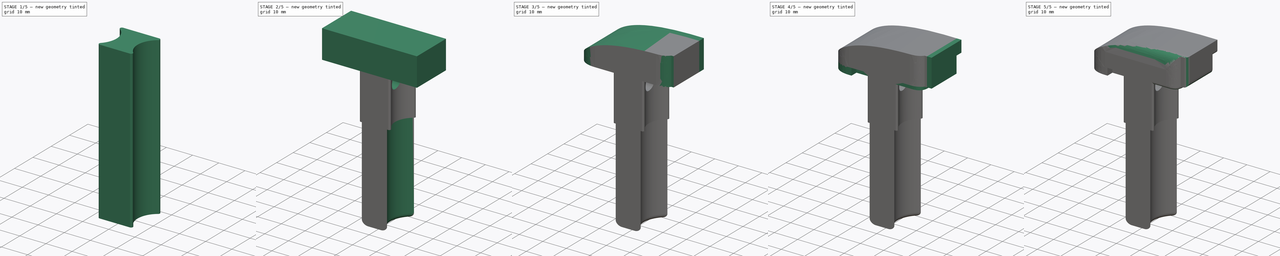
[diagram: build sequence overview — one tinted view per stage of 5, left to right]
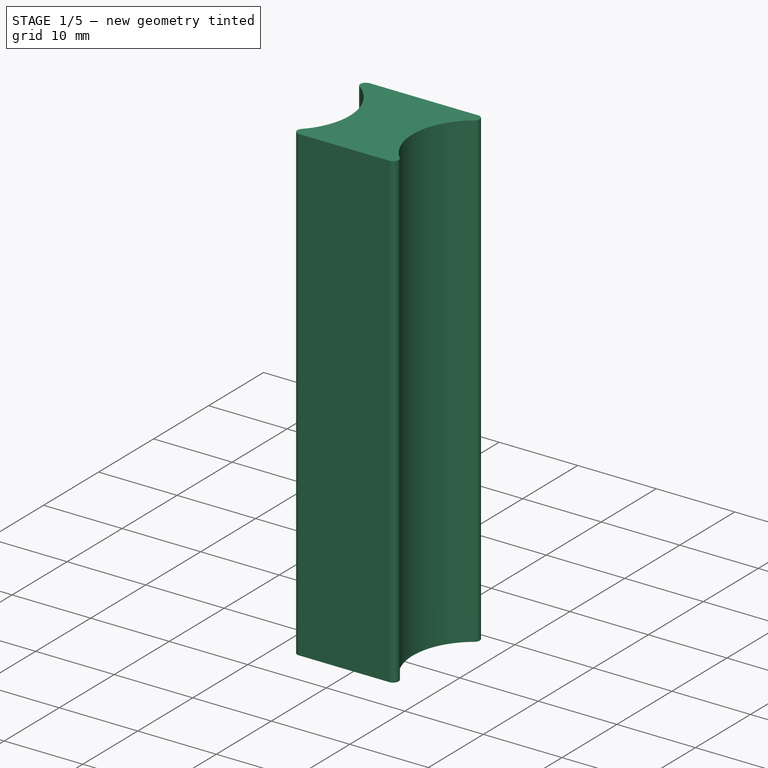
[diagram: stage 1 of 5 — iso view after this stage's code; geometry added in this stage tinted green]
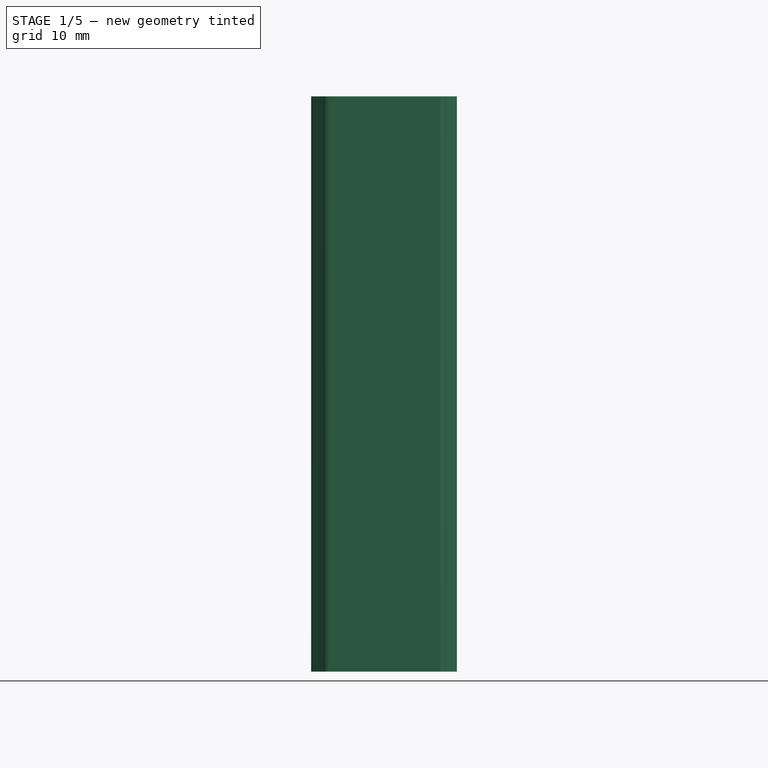
[diagram: stage 1 of 5 — front view after this stage's code; geometry added in this stage tinted green]
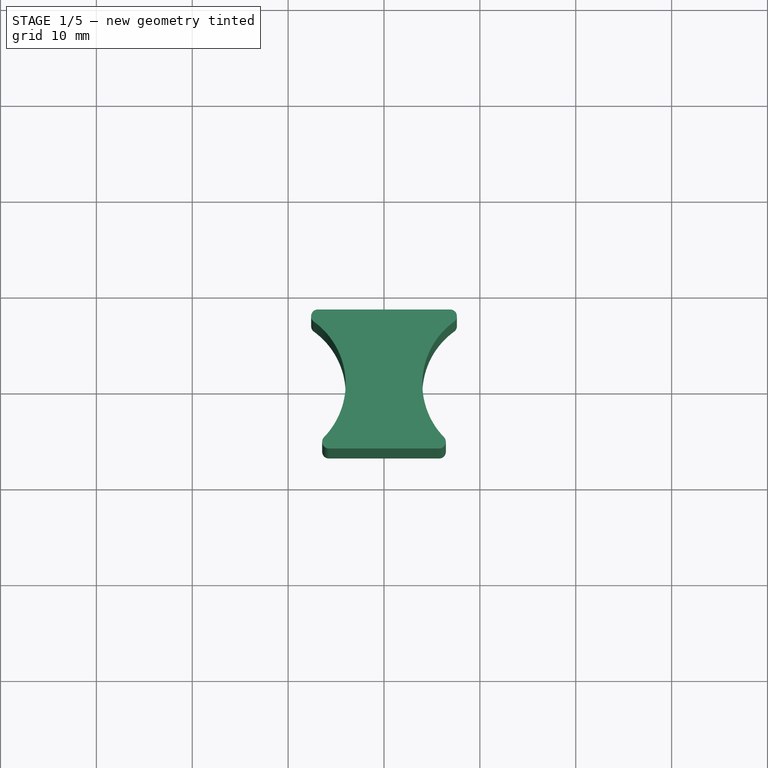
[diagram: stage 1 of 5 — top view after this stage's code; geometry added in this stage tinted green]
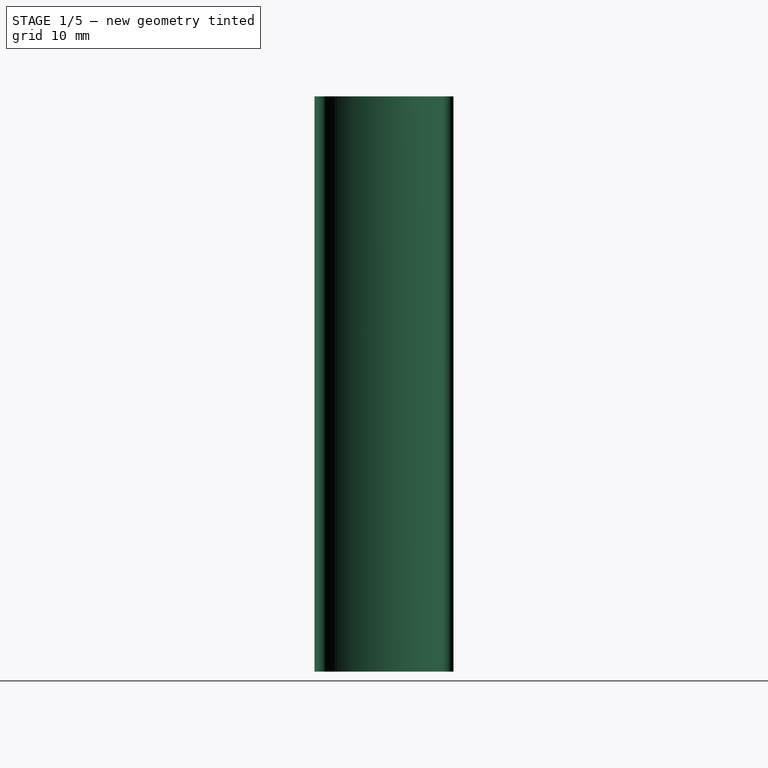
[diagram: stage 1 of 5 — right view after this stage's code; geometry added in this stage tinted green]
FCSTD DOCUMENT  (FreeCAD 0.19R)
Label: Batt_T90
License: All rights reserved
LicenseURL: http://en.wikipedia.org/wiki/All_rights_reserved
objects: Sketcher::SketchObject×13, PartDesign::Pocket×10, PartDesign::Pad×5, PartDesign::Fillet×4, PartDesign::Body×1
note: 52 computed .brp shape members not serialized (recipe doc carries the construction recipe); baked Part::Feature solids carry a one-line shape summary decoded from their .brp

FEATURE [Sketcher::SketchObject] Sketch
  FullyConstrained = true
  MapMode = 5
  Support = -> [XY_Plane]
  sketch-geometry (4):
    g0: LineSegment StartX=-12 StartY=7.75 StartZ=0 EndX=12 EndY=7.75 EndZ=0
    g1: LineSegment StartX=12 StartY=7.75 StartZ=0 EndX=12 EndY=-7.75 EndZ=0
    g2: LineSegment StartX=12 StartY=-7.75 StartZ=0 EndX=-12 EndY=-7.75 EndZ=0
    g3: LineSegment StartX=-12 StartY=-7.75 StartZ=0 EndX=-12 EndY=7.75 EndZ=0
  constraints (11):
    c: Coincident(g0,g1)
    c: Coincident(g1,g2)
    c: Coincident(g2,g3)
    c: Coincident(g3,g0)
    c: Horizontal(g0)
    c: Horizontal(g2)
    c: Vertical(g1)
    c: Vertical(g3)
    c: DistanceX(g0,g0) = 24
    c: Symmetric(g0,g2,g-1)
    c: DistanceY(g3,g3) = 15.5
FEATURE [PartDesign::Pad] Pad
  Direction = (1,1,1)
  Length = 60
  Length2 = 100
  Profile = -> Sketch
  Type = 0
FEATURE [Sketcher::SketchObject] Sketch001
  ExternalGeometry = -> [Pad]
  FullyConstrained = true
  MapMode = 5
  Placement = pos=(0,0,60) rot=(0,0,1;0rad)
  Support = -> [Pad]
  sketch-geometry (2):
    g0: Circle CenterX=12 CenterY=0 CenterZ=0 NormalX=0 NormalY=0 NormalZ=1 AngleXU=0 Radius=8
    g1: Circle CenterX=-12 CenterY=0 CenterZ=0 NormalX=0 NormalY=0 NormalZ=1 AngleXU=0 Radius=8
  constraints (5):
    c: Diameter(g1) = 16
    c: Equal(g1,g0)
    c: Horizontal(g0,g-1)
    c: Symmetric(g1,g0,g-1)
    c: PointOnObject(g1,g-3)
FEATURE [PartDesign::Pocket] Pocket
  BaseFeature = -> Pad
  Length = 5
  Length2 = 100
  Profile = -> Sketch001
  Type = 1
FEATURE [Sketcher::SketchObject] Sketch002
  ExternalGeometry = -> [Pocket]
  FullyConstrained = true
  MapMode = 5
  Placement = pos=(0,0,60) rot=(0,0,1;0rad)
  Support = -> [Pocket]
  sketch-geometry (4):
    g0: LineSegment StartX=-10.0157 StartY=-7.75 StartZ=0 EndX=10.0157 EndY=-7.75 EndZ=0
    g1: LineSegment StartX=10.0157 StartY=-7.75 StartZ=0 EndX=10.0157 EndY=-6.75 EndZ=0
    g2: LineSegment StartX=10.0157 StartY=-6.75 StartZ=0 EndX=-10.0157 EndY=-6.75 EndZ=0
    g3: LineSegment StartX=-10.0157 StartY=-6.75 StartZ=0 EndX=-10.0157 EndY=-7.75 EndZ=0
  constraints (11):
    c: Coincident(g0,g1)
    c: Coincident(g1,g2)
    c: Coincident(g2,g3)
    c: Coincident(g3,g0)
    c: Horizontal(g0)
    c: Horizontal(g2)
    c: Vertical(g1)
    c: Vertical(g3)
    c: Equal(g0,g-3)
    c: Coincident(g0,g-3)
    c: DistanceY(g1,g1) = 1
FEATURE [PartDesign::Pocket] Pocket001
  BaseFeature = -> Pocket
  Length = 5
  Length2 = 100
  Profile = -> Sketch002
  Type = 1
FEATURE [PartDesign::Fillet] Fillet
  Base = -> Pocket001 [Edge15,Edge10,Edge2,Edge4]
  BaseFeature = -> Pocket001
  Radius = 0.7
  SupportTransform = false
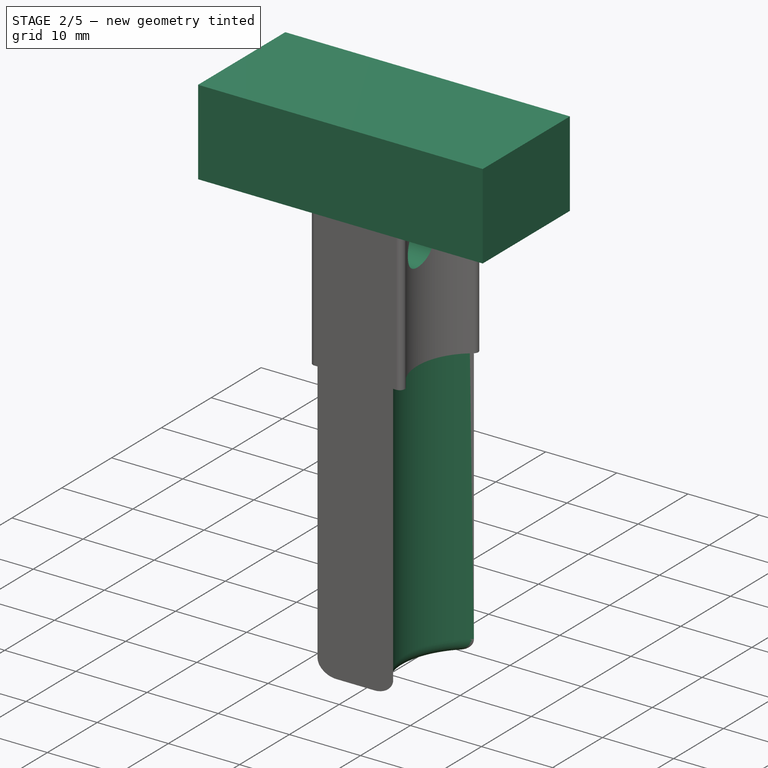
[diagram: stage 2 of 5 — iso view after this stage's code; geometry added in this stage tinted green]
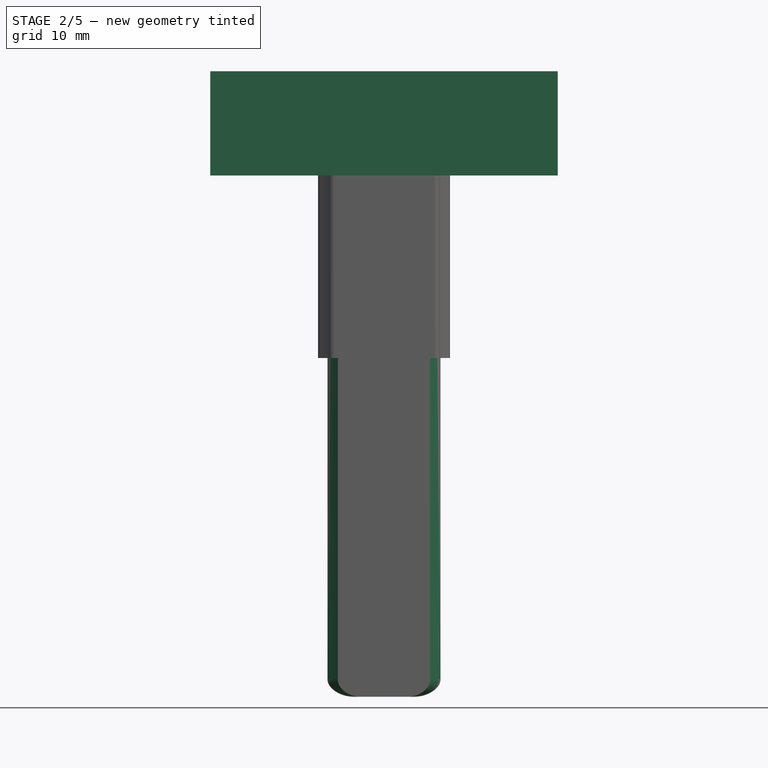
[diagram: stage 2 of 5 — front view after this stage's code; geometry added in this stage tinted green]
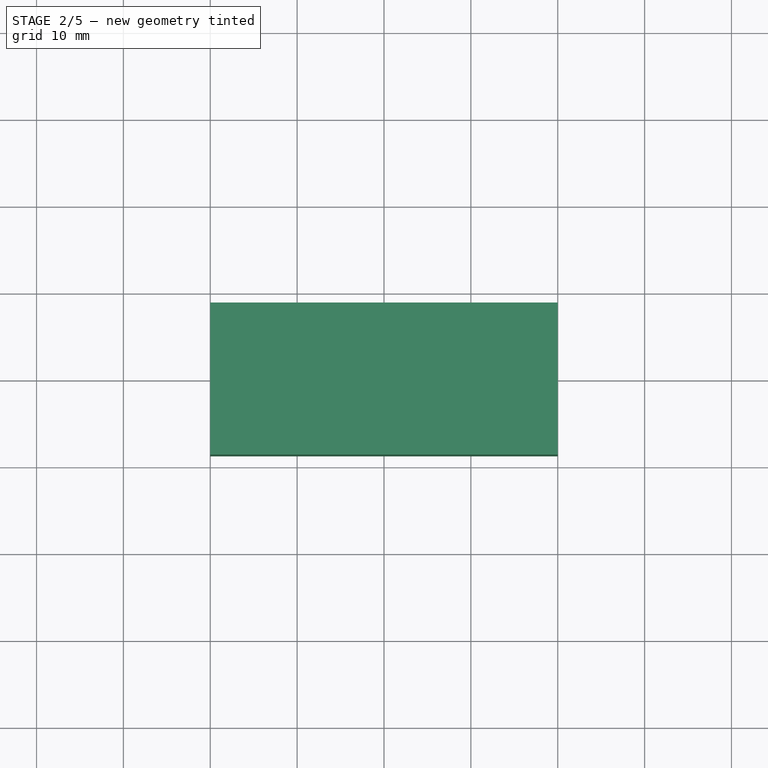
[diagram: stage 2 of 5 — top view after this stage's code; geometry added in this stage tinted green]
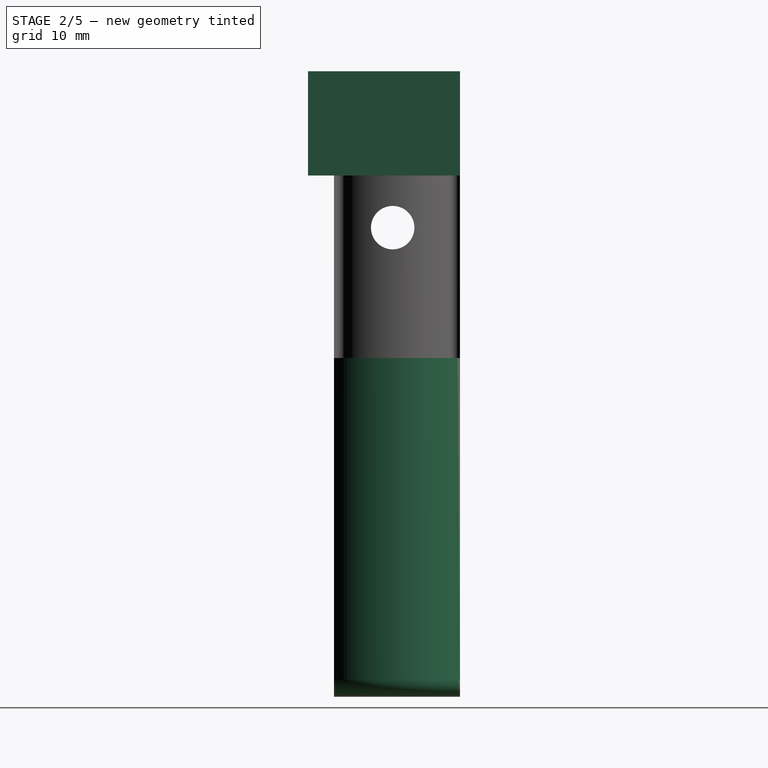
[diagram: stage 2 of 5 — right view after this stage's code; geometry added in this stage tinted green]
FEATURE [Sketcher::SketchObject] Sketch003
  ExternalGeometry = -> [Fillet]
  FullyConstrained = true
  MapMode = 5
  Placement = pos=(0,0,60) rot=(0,0,1;0rad)
  Support = -> [Fillet]
  sketch-geometry (5):
    g0: LineSegment StartX=20 StartY=7.75 StartZ=0 EndX=-20 EndY=7.75 EndZ=0
    g1: LineSegment StartX=-20 StartY=7.75 StartZ=0 EndX=-20 EndY=-9.75 EndZ=0
    g2: LineSegment StartX=-20 StartY=-9.75 StartZ=0 EndX=20 EndY=-9.75 EndZ=0
    g3: LineSegment StartX=20 StartY=-9.75 StartZ=0 EndX=20 EndY=7.75 EndZ=0
    g4: GeomPoint X=0 Y=-9.75 Z=0
  constraints (12):
    c: Coincident(g0,g1)
    c: Coincident(g1,g2)
    c: Coincident(g2,g3)
    c: Coincident(g3,g0)
    c: Horizontal(g2)
    c: Vertical(g1)
    c: Vertical(g3)
    c: Symmetric(g2,g2,g4)
    c: Vertical(g4,g-1)
    c: DistanceX(g2,g2) = 40
    c: DistanceY(g2,g-3) = 3
    c: Tangent(g0,g-4)
FEATURE [PartDesign::Pad] Pad001
  BaseFeature = -> Fillet
  Direction = (1,1,1)
  Length = 12
  Length2 = 100
  Profile = -> Sketch003
  Type = 0
FEATURE [Sketcher::SketchObject] Sketch004
  ExternalGeometry = -> [Pad001]
  FullyConstrained = true
  MapMode = 5
  Placement = pos=(0,0,0) rot=(1,0,0;3.14159rad)
  Support = -> [Pad001]
  sketch-geometry (2):
    g0: Circle CenterX=-12 CenterY=0 CenterZ=0 NormalX=0 NormalY=0 NormalZ=1 AngleXU=0 Radius=9.5
    g1: Circle CenterX=12 CenterY=0 CenterZ=0 NormalX=0 NormalY=0 NormalZ=1 AngleXU=0 Radius=9.5
  constraints (4):
    c: Coincident(g0,g-3)
    c: Coincident(g1,g-4)
    c: Equal(g1,g0)
    c: Diameter(g0) = 19
FEATURE [PartDesign::Pocket] Pocket002
  BaseFeature = -> Pad001
  Length = 39
  Length2 = 100
  Profile = -> Sketch004
  Type = 0
FEATURE [PartDesign::Fillet] Fillet001
  Base = -> Pocket002 [Edge50,Edge49]
  BaseFeature = -> Pocket002
  Radius = 2
  SupportTransform = false
FEATURE [Sketcher::SketchObject] Sketch005
  ExternalGeometry = -> [Fillet001]
  FullyConstrained = true
  MapMode = 5
  Placement = pos=(-20,0,0) rot=(0.57735,-0.57735,-0.57735;2.0944rad)
  Support = -> [Fillet001]
  sketch-geometry (1):
    g0: Circle CenterX=0 CenterY=54 CenterZ=0 NormalX=0 NormalY=0 NormalZ=1 AngleXU=0 Radius=2.5
  constraints (3):
    c: Vertical(g0,g-1)
    c: DistanceY(g0,g-3) = 6
    c: Diameter(g0) = 5
FEATURE [PartDesign::Pocket] Pocket003
  BaseFeature = -> Fillet001
  Length = 5
  Length2 = 100
  Profile = -> Sketch005
  Type = 1
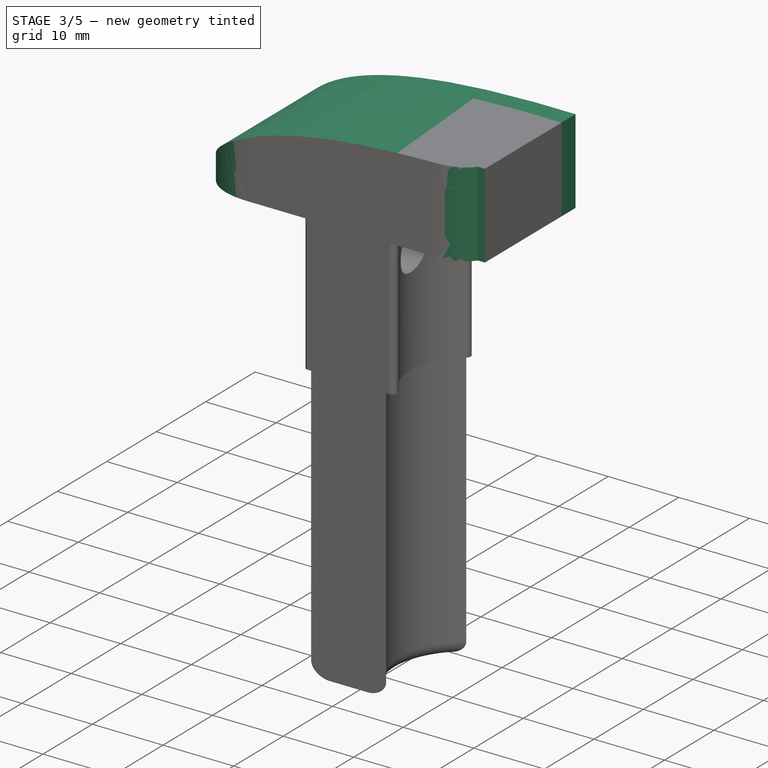
[diagram: stage 3 of 5 — iso view after this stage's code; geometry added in this stage tinted green]
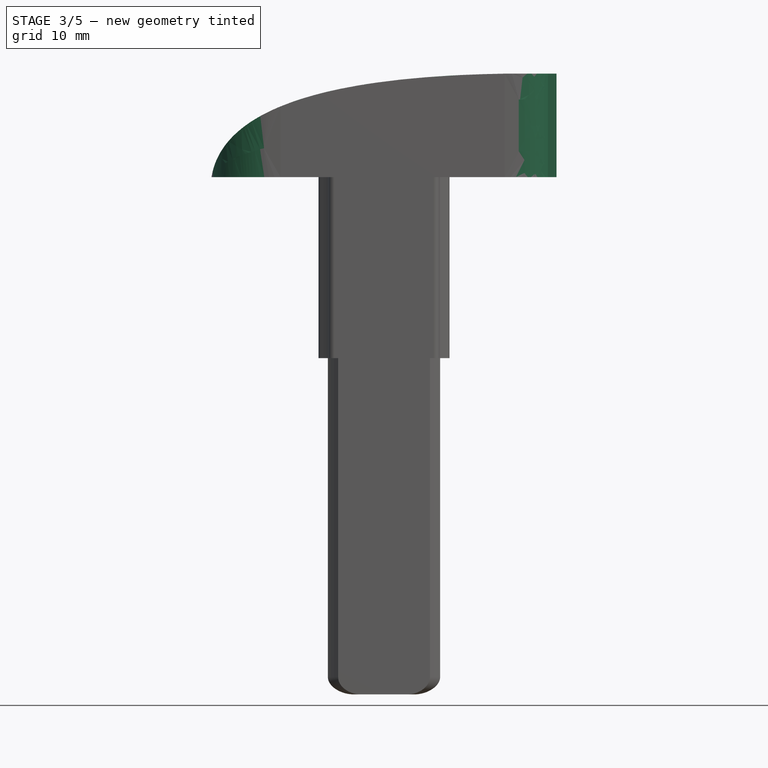
[diagram: stage 3 of 5 — front view after this stage's code; geometry added in this stage tinted green]
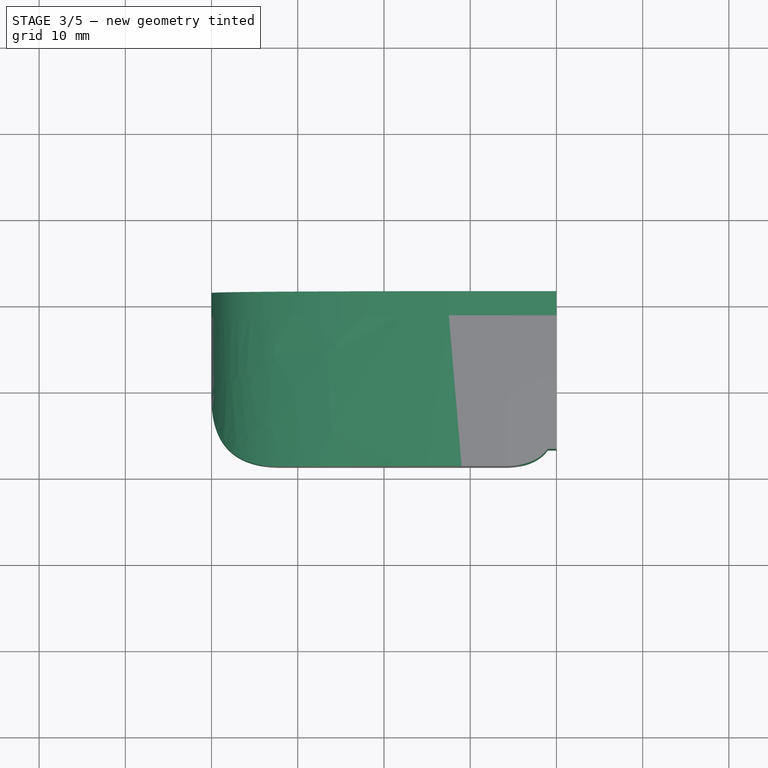
[diagram: stage 3 of 5 — top view after this stage's code; geometry added in this stage tinted green]
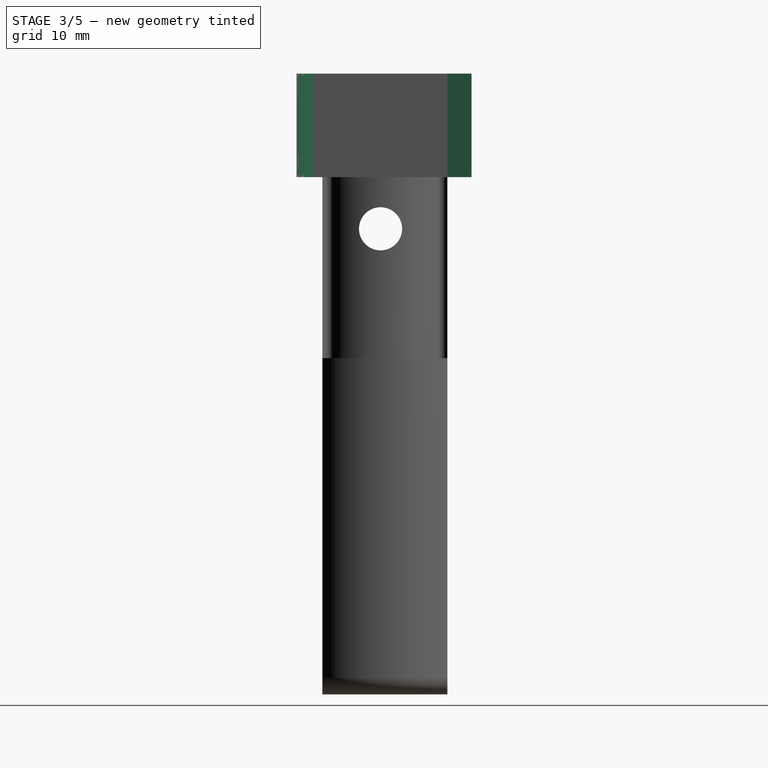
[diagram: stage 3 of 5 — right view after this stage's code; geometry added in this stage tinted green]
FEATURE [Sketcher::SketchObject] Sketch006
  ExternalGeometry = -> [Pocket003]
  FullyConstrained = true
  MapMode = 5
  Placement = pos=(0,7.75,0) rot=(0,0.707107,0.707107;3.14159rad)
  Support = -> [Pocket003]
  sketch-geometry (9):
    g0: Circle CenterX=-20 CenterY=72 CenterZ=0 NormalX=0 NormalY=0 NormalZ=1 AngleXU=0 Radius=1
    g1: Circle CenterX=18 CenterY=72.5 CenterZ=0 NormalX=0 NormalY=0 NormalZ=1 AngleXU=0 Radius=1
    g2: Circle CenterX=20 CenterY=60 CenterZ=0 NormalX=0 NormalY=0 NormalZ=1 AngleXU=0 Radius=1
    g3: BSplineCurve PolesCount=3 KnotsCount=2 Degree=2 IsPeriodic=0
    g4: GeomPoint X=-20 Y=72 Z=0
    g5: GeomPoint X=20 Y=60 Z=0
    g6: LineSegment StartX=-20 StartY=72 StartZ=0 EndX=-20 EndY=77 EndZ=0
    g7: LineSegment StartX=-20 StartY=77 StartZ=0 EndX=20 EndY=77 EndZ=0
    g8: LineSegment StartX=20 StartY=77 StartZ=0 EndX=20 EndY=60 EndZ=0
  constraints (20):
    c: Weight(g0) = 1
    c: Equal(g0,g1)
    c: Equal(g0,g2)
    c: InternalAlignment(g0,g3)
    c: InternalAlignment(g1,g3)
    c: InternalAlignment(g2,g3)
    c: InternalAlignment(g4,g3)
    c: InternalAlignment(g5,g3)
    c: Coincident(g6,g3)
    c: Vertical(g6)
    c: Coincident(g7,g6)
    c: Horizontal(g7)
    c: Coincident(g8,g7)
    c: Coincident(g8,g3)
    c: Vertical(g8)
    c: DistanceY(g6,g6) = 5
    c: Coincident(g-4,g3)
    c: Coincident(g3,g-3)
    c: DistanceY(g-4,g1) = 0.5
    c: DistanceX(g1,g-4) = 2
FEATURE [PartDesign::Pocket] Pocket004
  BaseFeature = -> Pocket003
  Length = 5
  Length2 = 100
  Profile = -> Sketch006
  Type = 1
FEATURE [Sketcher::SketchObject] Sketch007
  ExternalGeometry = -> [Pocket004]
  FullyConstrained = true
  MapMode = 5
  Placement = pos=(0,0,72) rot=(0,0,1;0rad)
  Support = -> [Pocket004]
  sketch-geometry (17):
    g0: LineSegment StartX=-20 StartY=-21.75 StartZ=0 EndX=24 EndY=-21.75 EndZ=0
    g1: LineSegment StartX=24 StartY=-21.75 StartZ=0 EndX=24 EndY=-7.75 EndZ=0
    g2: LineSegment StartX=24 StartY=-7.75 StartZ=0 EndX=19 EndY=-7.75 EndZ=0
    g3: Circle CenterX=14 CenterY=-9.75 CenterZ=0 NormalX=0 NormalY=0 NormalZ=1 AngleXU=0 Radius=1
    g4: Circle CenterX=17.5 CenterY=-9.75 CenterZ=0 NormalX=0 NormalY=0 NormalZ=1 AngleXU=0 Radius=1
    g5: Circle CenterX=19 CenterY=-7.75 CenterZ=0 NormalX=0 NormalY=0 NormalZ=1 AngleXU=0 Radius=1
    g6: BSplineCurve PolesCount=3 KnotsCount=2 Degree=2 IsPeriodic=0
    g7: GeomPoint X=14 Y=-9.75 Z=0
    g8: GeomPoint X=19 Y=-7.75 Z=0
    g9: LineSegment StartX=-20 StartY=-21.75 StartZ=0 EndX=-20 EndY=-1.75 EndZ=0
    g10: Circle CenterX=-20 CenterY=-1.75 CenterZ=0 NormalX=0 NormalY=0 NormalZ=1 AngleXU=0 Radius=1
    g11: Circle CenterX=-20 CenterY=-9.75 CenterZ=0 NormalX=0 NormalY=0 NormalZ=1 AngleXU=0 Radius=1
    g12: Circle CenterX=-12 CenterY=-9.75 CenterZ=0 NormalX=0 NormalY=0 NormalZ=1 AngleXU=0 Radius=1
    g13: BSplineCurve PolesCount=3 KnotsCount=2 Degree=2 IsPeriodic=0
    g14: GeomPoint X=-20 Y=-1.75 Z=0
    g15: GeomPoint X=-12 Y=-9.75 Z=0
    g16: LineSegment StartX=-12 StartY=-9.75 StartZ=0 EndX=14 EndY=-9.75 EndZ=0
  constraints (41):
    c: Horizontal(g0)
    c: Coincident(g1,g0)
    c: Vertical(g1)
    c: Coincident(g2,g1)
    c: Weight(g3) = 1
    c: Equal(g3,g4)
    c: Equal(g3,g5)
    c: Coincident(g6,g2)
    c: InternalAlignment(g3,g6)
    c: InternalAlignment(g4,g6)
    c: InternalAlignment(g5,g6)
    c: InternalAlignment(g7,g6)
    c: InternalAlignment(g8,g6)
    c: Horizontal(g2)
    c: DistanceX(g2,g2) = 5
    c: Horizontal(g4,g6)
    c: DistanceX(g2,g-4) = 1
    c: DistanceX(g6,g2) = 5
    c: DistanceX(g4,g2) = 1.5
    c: DistanceY(g-4,g2) = 2
    c: Coincident(g9,g0)
    c: Vertical(g-3,g9)
    c: Weight(g10) = 1
    c: Equal(g10,g11)
    c: Equal(g10,g12)
    c: InternalAlignment(g10,g13)
    c: InternalAlignment(g11,g13)
    c: InternalAlignment(g12,g13)
    c: InternalAlignment(g14,g13)
    c: InternalAlignment(g15,g13)
    c: Coincident(g16,g13)
    c: Coincident(g16,g6)
    c: Horizontal(g16)
    c: Horizontal(g-3,g6)
    c: Coincident(g9,g13)
    c: DistanceY(g-3,g9) = 8
    c: DistanceX(g-3,g13) = 8
    c: Vertical(g9)
    c: DistanceY(g9,g9) = 20
    c: Horizontal(g11,g13)
    c: Vertical(g11,g9)
FEATURE [PartDesign::Pocket] Pocket005
  BaseFeature = -> Pocket004
  Length = 5
  Length2 = 100
  Profile = -> Sketch007
  Type = 1
FEATURE [PartDesign::Pad] Pad002
  BaseFeature = -> Pocket005
  Direction = (1,1,1)
  Length = 2.8
  Length2 = 100
  Profile = -> Pocket005 [Face11]
  Type = 0
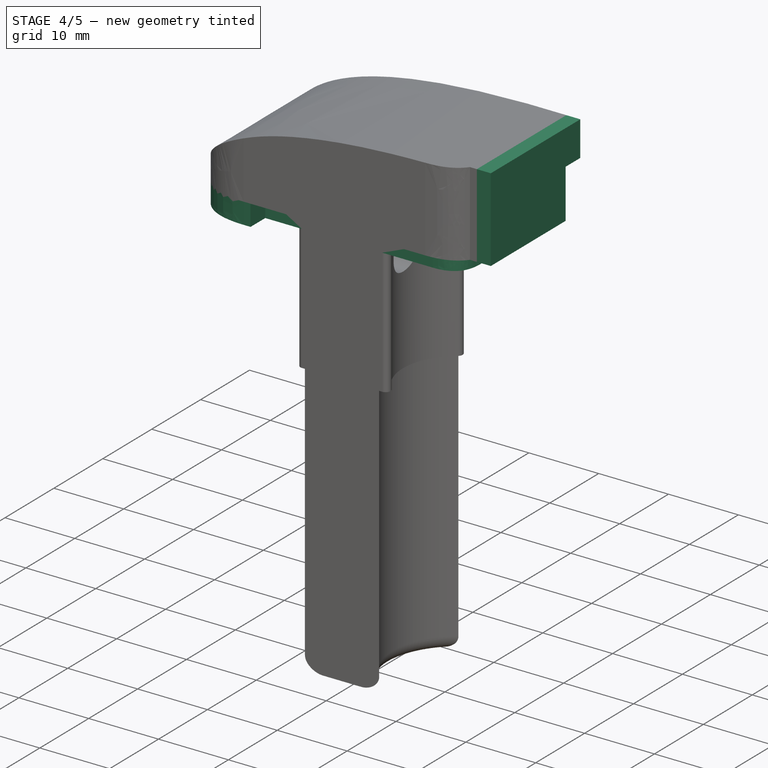
[diagram: stage 4 of 5 — iso view after this stage's code; geometry added in this stage tinted green]
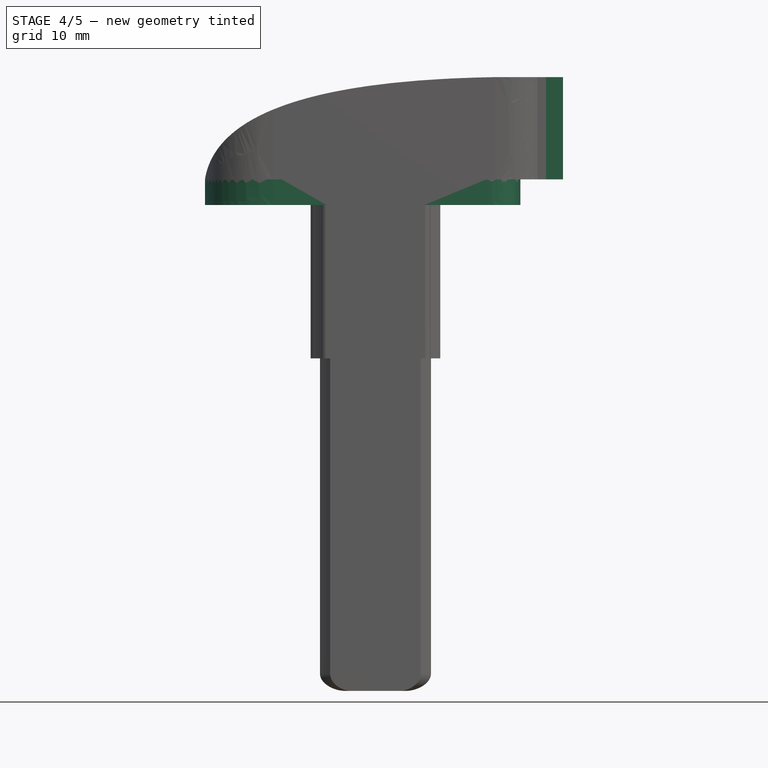
[diagram: stage 4 of 5 — front view after this stage's code; geometry added in this stage tinted green]
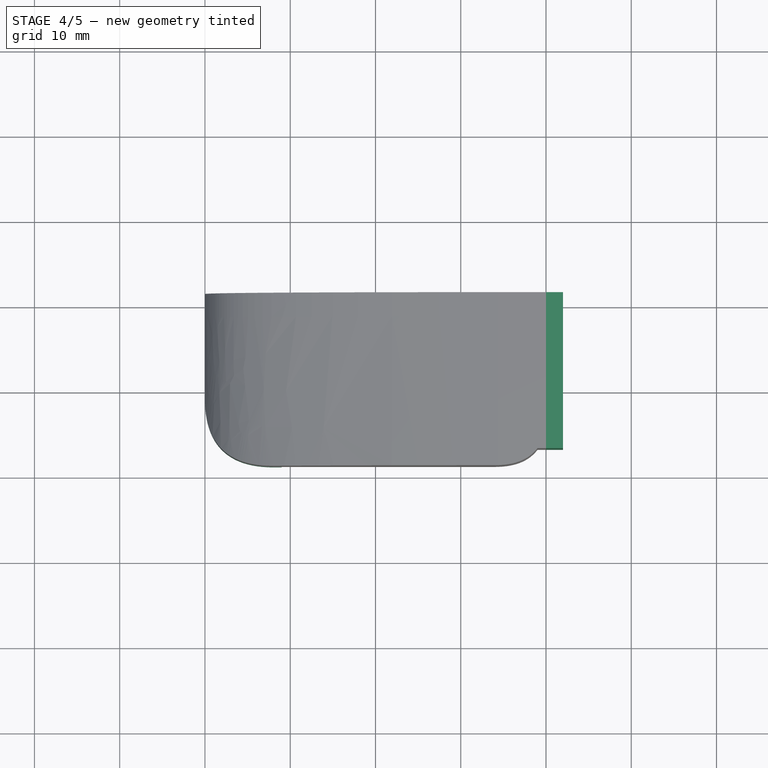
[diagram: stage 4 of 5 — top view after this stage's code; geometry added in this stage tinted green]
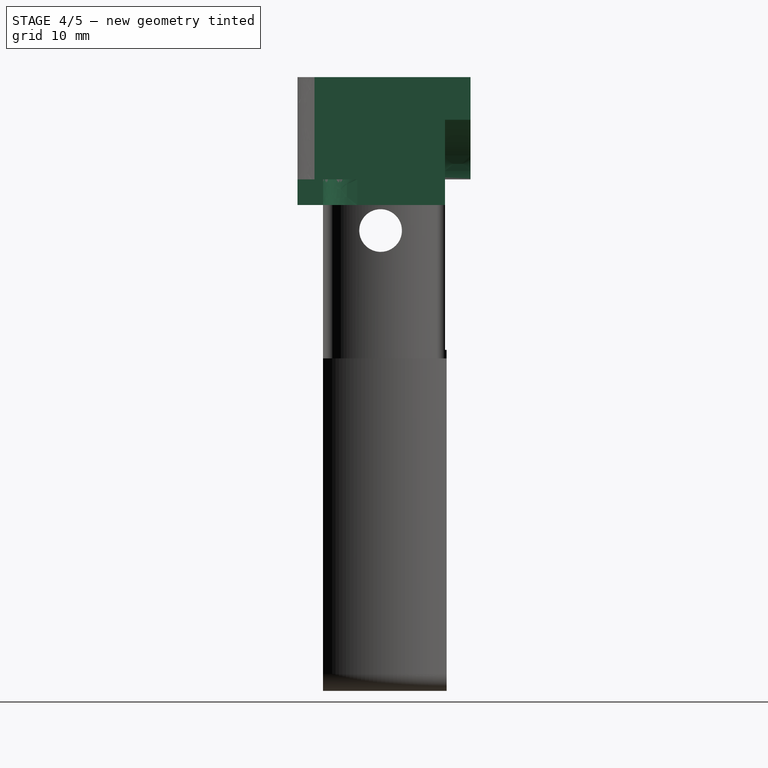
[diagram: stage 4 of 5 — right view after this stage's code; geometry added in this stage tinted green]
FEATURE [Sketcher::SketchObject] Sketch008
  ExternalGeometry = -> [Pad002]
  FullyConstrained = true
  MapMode = 5
  Placement = pos=(0,10.55,0) rot=(0,0.707107,0.707107;3.14159rad)
  Support = -> [Pad002]
  sketch-geometry (12):
    g0: LineSegment StartX=-20 StartY=67 StartZ=0 EndX=7.2 EndY=67 EndZ=0
    g1-g4: Circle x4 (B-spline internal-alignment scaffolding for g5; pole/knot coordinates omitted)
    g5: BSplineCurve PolesCount=4 KnotsCount=2 Degree=3 IsPeriodic=0
    g6: GeomPoint X=7.2 Y=67 Z=0
    g7: GeomPoint X=19.2 Y=60 Z=0
    g8: LineSegment StartX=19.2 StartY=60 StartZ=0 EndX=24.2 EndY=60 EndZ=0
    g9: LineSegment StartX=24.2 StartY=60 StartZ=0 EndX=24.2 EndY=40 EndZ=0
    g10: LineSegment StartX=24.2 StartY=40 StartZ=0 EndX=-20 EndY=40 EndZ=0
    g11: LineSegment StartX=-20 StartY=40 StartZ=0 EndX=-20 EndY=67 EndZ=0
  constraints (28):
    c: Horizontal(g0)
    c: Vertical(g0,g-3)
    c: DistanceY(g0,g-3) = 5
    c: Coincident(g5,g0)
    c: Weight(g1) = 1
    c: Equal(g1,g2)
    c: Equal(g1,g3)
    c: Equal(g1,g4)
    c: Coincident(g5,g3)
    c: InternalAlignment(g1-g4 -> g5) x4
    c: InternalAlignment(g6,g5)
    c: InternalAlignment(g7,g5)
    c: Horizontal(g5,g-4)
    c: Coincident(g8,g5)
    c: Horizontal(g8)
    c: DistanceX(g8,g8) = 5
    c: Coincident(g9,g8)
    c: Vertical(g9)
    c: Coincident(g10,g9)
    c: Horizontal(g10)
    c: Coincident(g11,g10)
    c: Coincident(g11,g0)
    c: Vertical(g11)
    c: DistanceY(g9,g9) = -20
    c: DistanceX(g5,g-4) = 0.8
    c: Vertical(g2,g5)
    c: Horizontal(g2,g0)
    c: DistanceX(g0,g5) = 12
FEATURE [PartDesign::Pocket] Pocket006
  BaseFeature = -> Pad002
  Length = 3
  Length2 = 100
  Profile = -> Sketch008
  Type = 0
FEATURE [Sketcher::SketchObject] Sketch009
  ExternalGeometry = -> [Pocket006]
  FullyConstrained = true
  MapMode = 5
  Placement = pos=(20,0,0) rot=(0.57735,0.57735,0.57735;2.0944rad)
  Support = -> [Pocket006]
  sketch-geometry (6):
    g0: LineSegment StartX=-7.75 StartY=72 StartZ=0 EndX=10.55 EndY=72 EndZ=0
    g1: LineSegment StartX=10.55 StartY=72 StartZ=0 EndX=10.55 EndY=67 EndZ=0
    g2: LineSegment StartX=10.55 StartY=67 StartZ=0 EndX=7.55 EndY=67 EndZ=0
    g3: LineSegment StartX=7.55 StartY=67 StartZ=0 EndX=7.55 EndY=60 EndZ=0
    g4: LineSegment StartX=7.55 StartY=60 StartZ=0 EndX=-7.75 EndY=60 EndZ=0
    g5: LineSegment StartX=-7.75 StartY=60 StartZ=0 EndX=-7.75 EndY=72 EndZ=0
  constraints (12):
    c: Coincident(g0,g-7)
    c: Coincident(g0,g-3)
    c: Coincident(g1,g0)
    c: Coincident(g1,g-4)
    c: Coincident(g2,g1)
    c: Coincident(g2,g-5)
    c: Coincident(g3,g2)
    c: Coincident(g3,g-6)
    c: Coincident(g4,g3)
    c: Coincident(g4,g-7)
    c: Coincident(g5,g4)
    c: Coincident(g5,g0)
FEATURE [PartDesign::Pad] Pad003
  BaseFeature = -> Pocket006
  Direction = (1,1,1)
  Length = 2
  Length2 = 100
  Profile = -> Sketch009
  Type = 0
FEATURE [PartDesign::Pad] Pad004
  BaseFeature = -> Pad003
  Direction = (1,1,1)
  Length = 3
  Length2 = 100
  Profile = -> Pad003 [Face17]
  Type = 0
FEATURE [Sketcher::SketchObject] Sketch010
  ExternalGeometry = -> [Pad004]
  FullyConstrained = true
  MapMode = 5
  Placement = pos=(0,0,57) rot=(1,0,0;3.14159rad)
  Support = -> [Pad004]
  sketch-geometry (12):
    g0: LineSegment StartX=-11 StartY=6.75 StartZ=0 EndX=13 EndY=6.75 EndZ=0
    g1: Circle CenterX=13 CenterY=6.75 CenterZ=0 NormalX=0 NormalY=0 NormalZ=1 AngleXU=0 Radius=1
    g2: Circle CenterX=17 CenterY=6.75 CenterZ=0 NormalX=0 NormalY=0 NormalZ=1 AngleXU=0 Radius=1
    g3: Circle CenterX=17 CenterY=2.75 CenterZ=0 NormalX=0 NormalY=0 NormalZ=1 AngleXU=0 Radius=1
    g4: BSplineCurve PolesCount=3 KnotsCount=2 Degree=2 IsPeriodic=0
    g5: GeomPoint X=13 Y=6.75 Z=0
    g6: GeomPoint X=17 Y=2.75 Z=0
    g7: LineSegment StartX=17 StartY=2.75 StartZ=0 EndX=17 EndY=-13.25 EndZ=0
    g8: LineSegment StartX=17 StartY=-13.25 StartZ=0 EndX=24 EndY=-13.25 EndZ=0
    g9: LineSegment StartX=24 StartY=-13.25 StartZ=0 EndX=24 EndY=11.75 EndZ=0
    g10: LineSegment StartX=24 StartY=11.75 StartZ=0 EndX=-11 EndY=11.75 EndZ=0
    g11: LineSegment StartX=-11 StartY=11.75 StartZ=0 EndX=-11 EndY=6.75 EndZ=0
  constraints (30):
    c: Coincident(g4,g0)
    c: Weight(g1) = 1
    c: Equal(g1,g2)
    c: Equal(g1,g3)
    c: InternalAlignment(g1,g4)
    c: InternalAlignment(g2,g4)
    c: InternalAlignment(g3,g4)
    c: InternalAlignment(g5,g4)
    c: InternalAlignment(g6,g4)
    c: Coincident(g7,g4)
    c: Vertical(g7)
    c: Coincident(g8,g7)
    c: Horizontal(g8)
    c: Coincident(g9,g8)
    c: Vertical(g9)
    c: Coincident(g10,g9)
    c: Horizontal(g10)
    c: Coincident(g11,g10)
    c: Coincident(g11,g0)
    c: Vertical(g11)
    c: Tangent(g0,g-3) = 1.5708
    c: Horizontal(g0,g2)
    c: Vertical(g2,g4)
    c: DistanceX(g-4,g0) = 9
    c: DistanceY(g11,g11) = 5
    c: DistanceX(g10,g10) = 35
    c: DistanceY(g9,g9) = 25
    c: DistanceX(g4,g-5) = 5
    c: DistanceY(g4,g0) = 4
    c: DistanceX(g0,g4) = 4
FEATURE [PartDesign::Pocket] Pocket007
  BaseFeature = -> Pad004
  Length = 3
  Length2 = 100
  Profile = -> Sketch010
  Type = 0
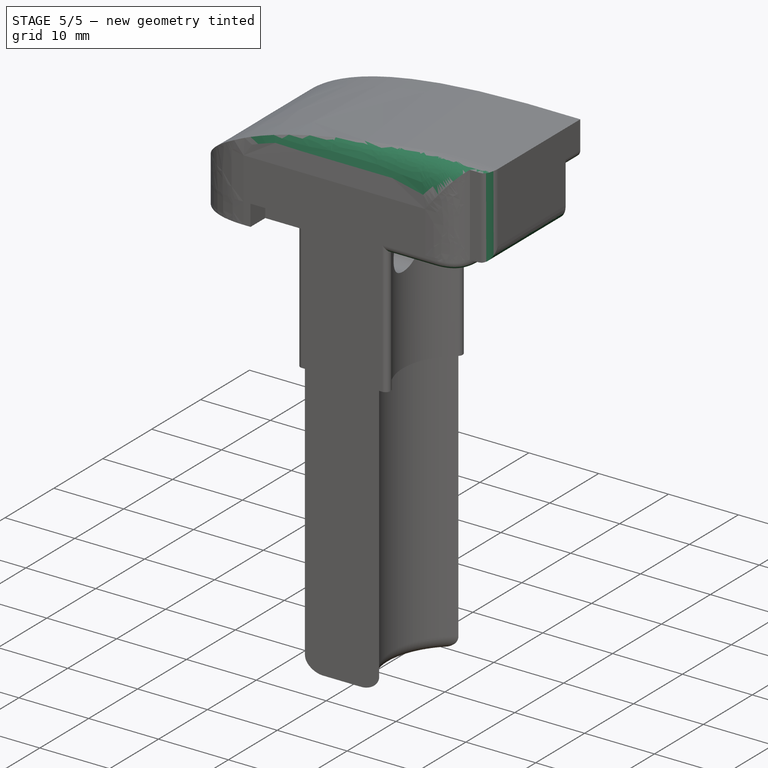
[diagram: stage 5 of 5 — iso view after this stage's code; geometry added in this stage tinted green]
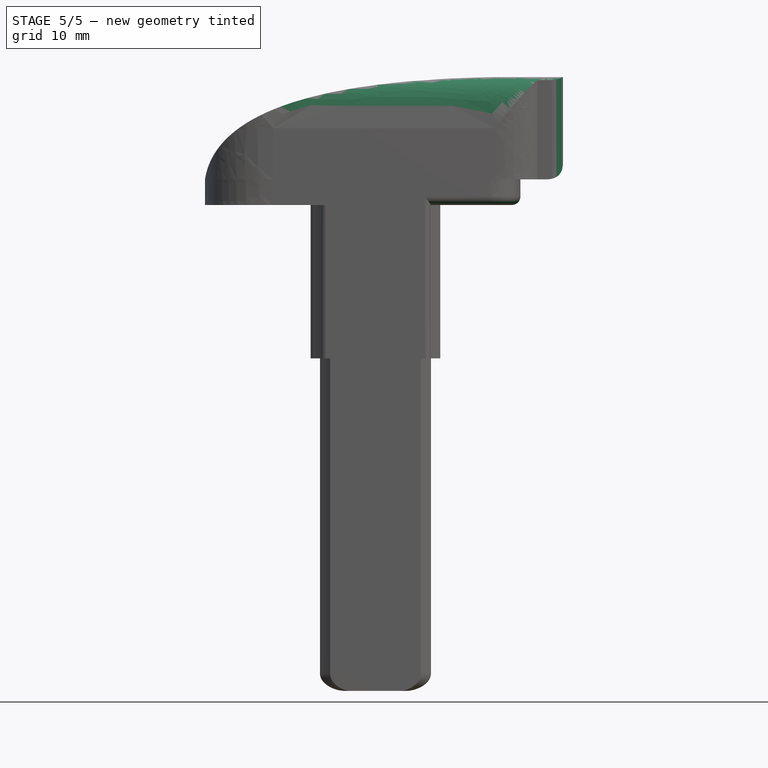
[diagram: stage 5 of 5 — front view after this stage's code; geometry added in this stage tinted green]
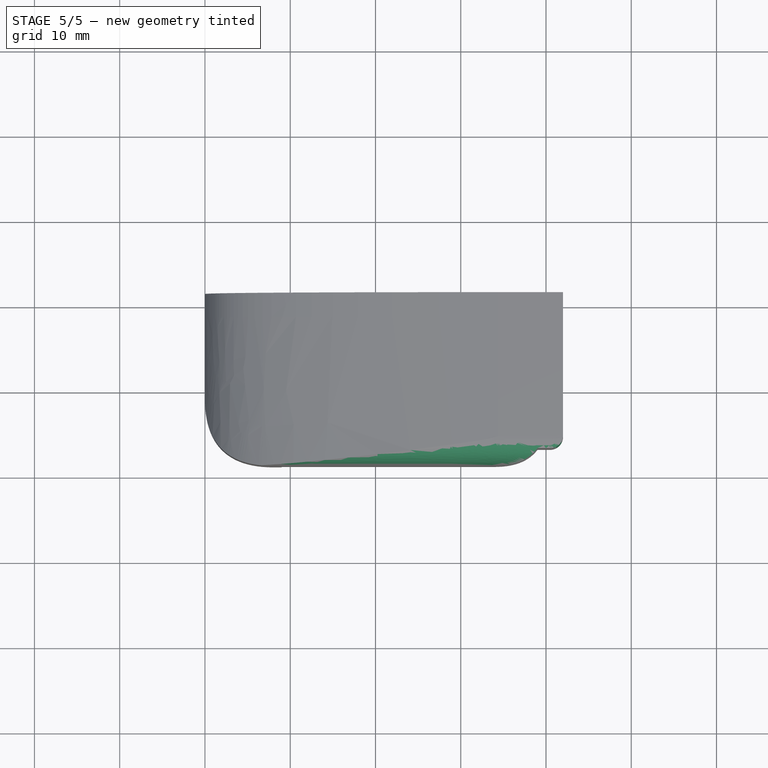
[diagram: stage 5 of 5 — top view after this stage's code; geometry added in this stage tinted green]
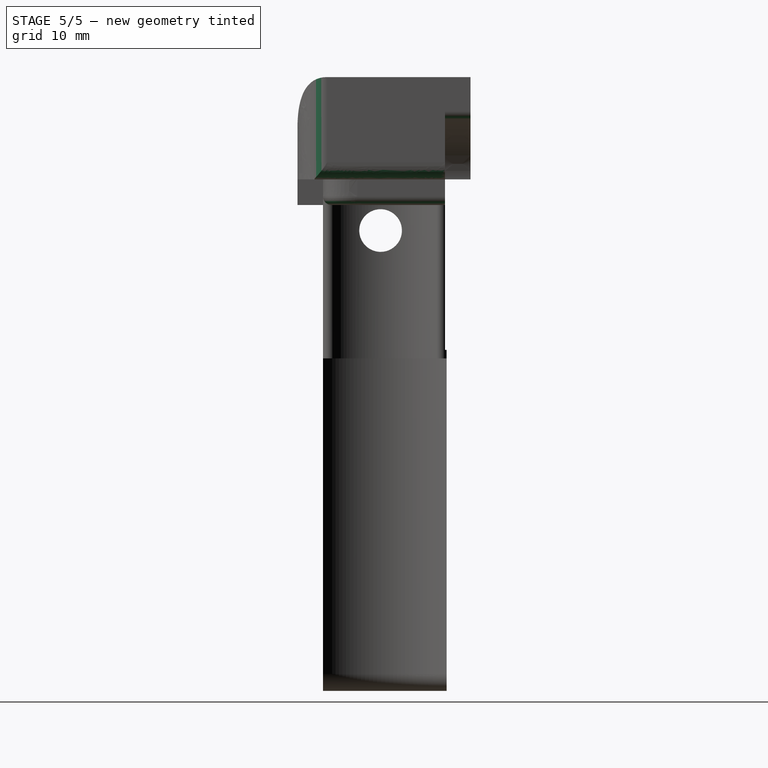
[diagram: stage 5 of 5 — right view after this stage's code; geometry added in this stage tinted green]
FEATURE [PartDesign::Fillet] Fillet002
  Base = -> Pocket007 [Edge118]
  BaseFeature = -> Pocket007
  Radius = 1.5
  SupportTransform = false
FEATURE [Sketcher::SketchObject] Sketch011
  ExternalGeometry = -> [Fillet002]
  FullyConstrained = true
  MapMode = 5
  Placement = pos=(22,0,0) rot=(0.57735,0.57735,0.57735;2.0944rad)
  Support = -> [Fillet002]
  sketch-geometry (12):
    g0: LineSegment StartX=-9.75 StartY=57 StartZ=0 EndX=-14.75 EndY=57 EndZ=0
    g1: LineSegment StartX=-14.75 StartY=57 StartZ=0 EndX=-14.75 EndY=77 EndZ=0
    g2: LineSegment StartX=-14.75 StartY=77 StartZ=0 EndX=13.75 EndY=77 EndZ=0
    g3: LineSegment StartX=13.75 StartY=77 StartZ=0 EndX=13.75 EndY=72 EndZ=0
    g4: LineSegment StartX=13.75 StartY=72 StartZ=0 EndX=-6.25 EndY=72 EndZ=0
    g5: LineSegment StartX=-9.75 StartY=57 StartZ=0 EndX=-9.75 EndY=66 EndZ=0
    g6: Circle CenterX=-9.75 CenterY=66 CenterZ=0 NormalX=0 NormalY=0 NormalZ=1 AngleXU=0 Radius=1
    g7: Circle CenterX=-9.75 CenterY=72 CenterZ=0 NormalX=0 NormalY=0 NormalZ=1 AngleXU=0 Radius=1
    g8: Circle CenterX=-6.25 CenterY=72 CenterZ=0 NormalX=0 NormalY=0 NormalZ=1 AngleXU=0 Radius=1
    g9: BSplineCurve PolesCount=3 KnotsCount=2 Degree=2 IsPeriodic=0
    g10: GeomPoint X=-9.75 Y=66 Z=0
    g11: GeomPoint X=-6.25 Y=72 Z=0
  constraints (30):
    c: Coincident(g1,g0)
    c: Vertical(g1)
    c: Coincident(g2,g1)
    c: Coincident(g3,g2)
    c: Coincident(g4,g3)
    c: Coincident(g5,g0)
    c: Vertical(g5)
    c: Vertical(g3)
    c: Horizontal(g2)
    c: Horizontal(g4)
    c: Horizontal(g0)
    c: Coincident(g9,g5)
    c: Weight(g6) = 1
    c: Equal(g6,g7)
    c: Equal(g6,g8)
    c: Coincident(g9,g4)
    c: InternalAlignment(g6,g9)
    c: InternalAlignment(g7,g9)
    c: InternalAlignment(g8,g9)
    c: InternalAlignment(g10,g9)
    c: InternalAlignment(g11,g9)
    c: Coincident(g4,g-4)
    c: Vertical(g0,g-3)
    c: Vertical(g7,g5)
    c: Horizontal(g4,g7)
    c: DistanceY(g1,g1) = 20
    c: DistanceX(g0,g0) = 5
    c: DistanceY(g3,g3) = 5
    c: DistanceX(g4,g4) = 20
    c: DistanceY(g5,g7) = 6
FEATURE [PartDesign::Pocket] Pocket008
  BaseFeature = -> Fillet002
  Length = 5
  Length2 = 100
  Profile = -> Sketch011
  Type = 1
FEATURE [Sketcher::SketchObject] Sketch012
  ExternalGeometry = -> [Pocket008]
  FullyConstrained = true
  MapMode = 5
  Placement = pos=(0,10.55,0) rot=(0,0.707107,0.707107;3.14159rad)
  Support = -> [Pocket008]
  sketch-geometry (12):
    g0: Circle CenterX=-22 CenterY=62 CenterZ=0 NormalX=0 NormalY=0 NormalZ=1 AngleXU=0 Radius=1
    g1: Circle CenterX=-22 CenterY=60 CenterZ=0 NormalX=0 NormalY=0 NormalZ=1 AngleXU=0 Radius=1
    g2: Circle CenterX=-20 CenterY=60 CenterZ=0 NormalX=0 NormalY=0 NormalZ=1 AngleXU=0 Radius=1
    g3: BSplineCurve PolesCount=3 KnotsCount=2 Degree=2 IsPeriodic=0
    g4: GeomPoint X=-22 Y=62 Z=0
    g5: GeomPoint X=-20 Y=60 Z=0
    g6: LineSegment StartX=-20 StartY=60 StartZ=0 EndX=-19.5 EndY=60 EndZ=0
    g7: LineSegment StartX=-19.5 StartY=60 StartZ=0 EndX=-19.5 EndY=59 EndZ=0
    g8: LineSegment StartX=-19.5 StartY=59 StartZ=0 EndX=-23 EndY=59 EndZ=0
    g9: LineSegment StartX=-23 StartY=59 StartZ=0 EndX=-23 EndY=62.5 EndZ=0
    g10: LineSegment StartX=-23 StartY=62.5 StartZ=0 EndX=-22 EndY=62.5 EndZ=0
    g11: LineSegment StartX=-22 StartY=62.5 StartZ=0 EndX=-22 EndY=62 EndZ=0
  constraints (30):
    c: Weight(g0) = 1
    c: Equal(g0,g1)
    c: Equal(g0,g2)
    c: InternalAlignment(g0,g3)
    c: InternalAlignment(g1,g3)
    c: InternalAlignment(g2,g3)
    c: InternalAlignment(g4,g3)
    c: InternalAlignment(g5,g3)
    c: Vertical(g3,g-3)
    c: Horizontal(g-3,g3)
    c: Coincident(g1,g-3)
    c: Coincident(g6,g3)
    c: Horizontal(g6)
    c: Coincident(g7,g6)
    c: Coincident(g8,g7)
    c: Horizontal(g8)
    c: Coincident(g9,g8)
    c: Vertical(g9)
    c: Coincident(g10,g9)
    c: Horizontal(g10)
    c: Coincident(g11,g10)
    c: Coincident(g11,g3)
    c: Vertical(g11)
    c: Vertical(g7)
    c: Equal(g8,g9)
    c: Equal(g6,g11)
    c: DistanceY(g11,g11) = 0.5
    c: DistanceY(g7,g7) = 1
    c: Equal(g10,g7)
    c: DistanceX(g1,g3) = 2
FEATURE [PartDesign::Pocket] Pocket009
  BaseFeature = -> Pocket008
  Length = 5
  Length2 = 100
  Profile = -> Sketch012
  Type = 1
FEATURE [PartDesign::Fillet] Fillet003
  Base = -> Pocket009 [Edge91,Edge70]
  BaseFeature = -> Pocket009
  Radius = 1
  SupportTransform = false
FEATURE [PartDesign::Body] Body
  Group = -> [Sketch,Pad,Sketch001,Pocket,Sketch002,Pocket001,Fillet,Sketch003,Pad001,Sketch004,Pocket002,Fillet001,Sketch005,Pocket003,Sketch006,Pocket004,Sketch007,Pocket005,Pad002,Sketch008,Pocket006,Sketch009,Pad003,Pad004,Sketch010,Pocket007,Fillet002,Sketch011,Pocket008,Sketch012,Pocket009,Fillet003]
  Origin = -> Origin
  Tip = -> Fillet003
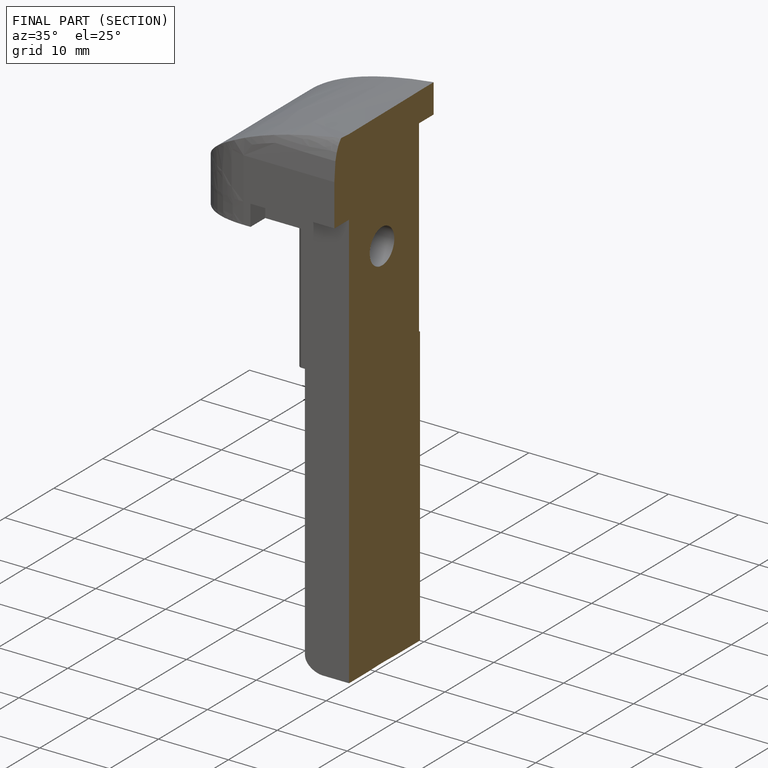
[diagram: finished part — half-section view (interior)]
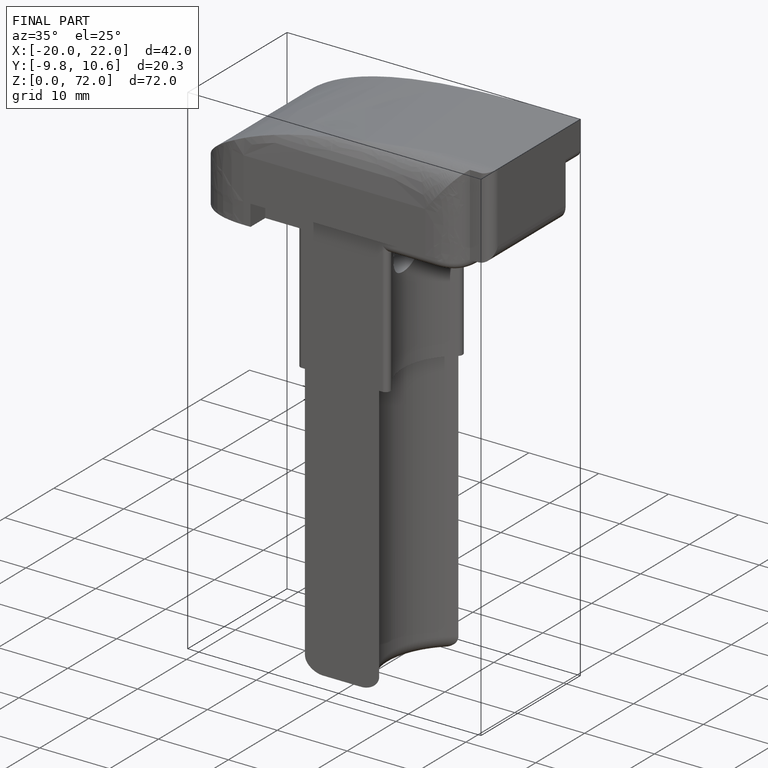
[diagram: finished part — iso view with bounding-box wireframe]
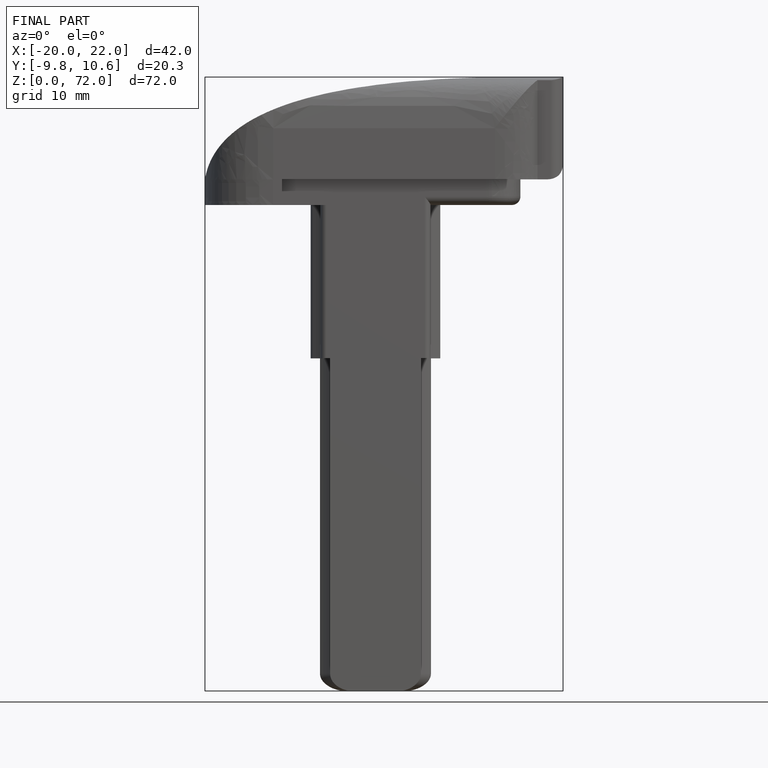
[diagram: finished part — front view with bounding-box wireframe]
